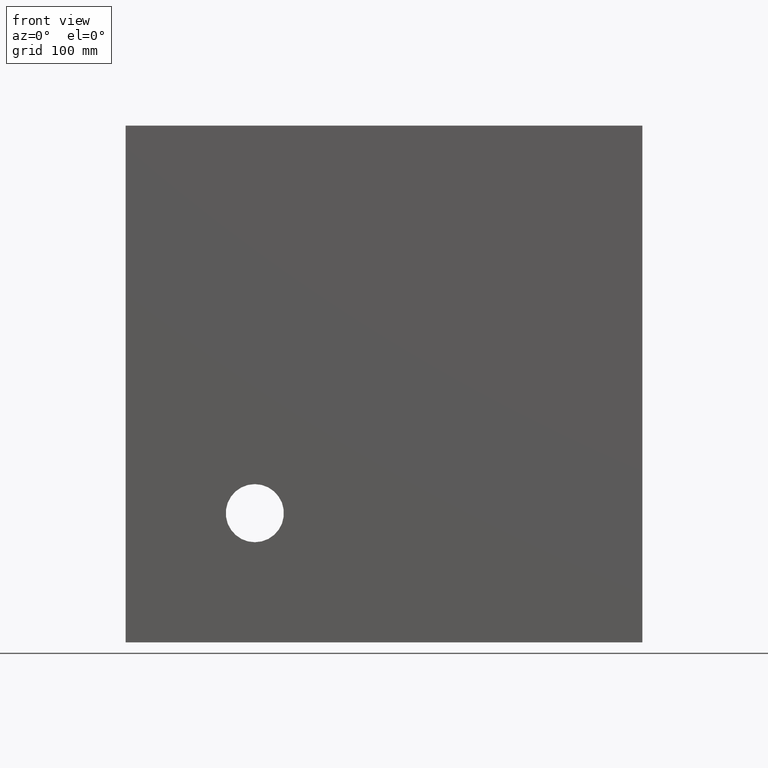
[diagram: clean part render]
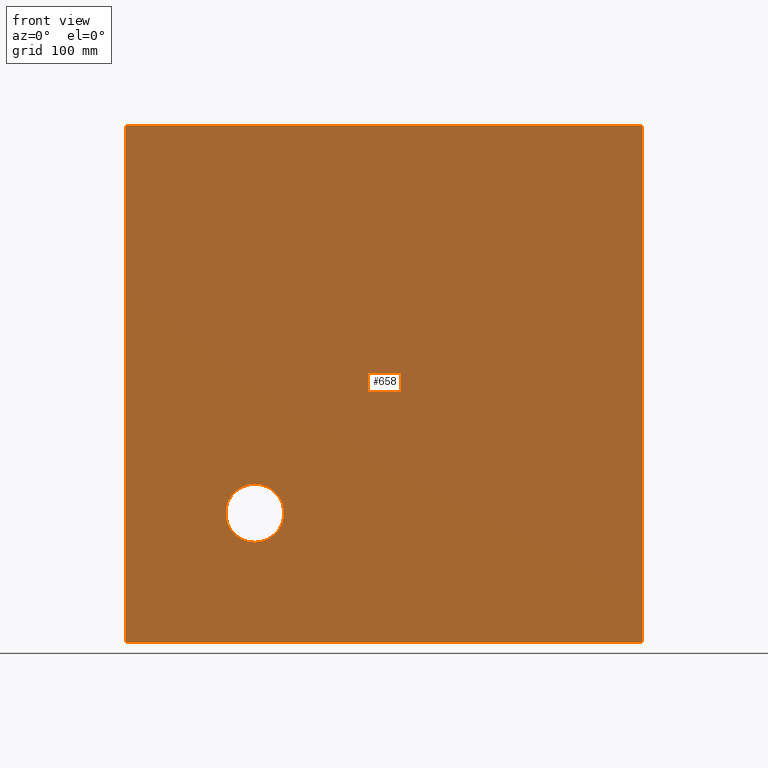
[diagram: same view with one face highlighted and labeled with its STEP entity id]
A machine part, front view. The second image highlights one B-rep face of the part: STEP entity #658.
In plain terms, the highlighted planar face has unit normal (0, 1, 0).
Its self-contained STEP definition (entity closure, byte-faithful):
#4 = EDGE_LOOP ( 'NONE', ( #969, #198, #120, #133 ) ) ;
#6 = LINE ( 'NONE', #288, #695 ) ;
#25 = CIRCLE ( 'NONE', #125, 44.99999999999995700 ) ;
#49 = EDGE_CURVE ( 'NONE', #841, #210, #847, .T. ) ;
#71 = AXIS2_PLACEMENT_3D ( 'NONE', #93, #768, #464 ) ;
#88 = VECTOR ( 'NONE', #670, 1000.000000000000000 ) ;
#93 = CARTESIAN_POINT ( 'NONE',  ( -200.0000000000000900, 0.0000000000000000000, -199.9999999999998900 ) ) ;
#96 = CARTESIAN_POINT ( 'NONE',  ( -400.0000000000000000, 0.0000000000000000000, 400.0000000000001100 ) ) ;
#107 = DIRECTION ( 'NONE',  ( 0.0000000000000000000, 1.000000000000000000, 0.0000000000000000000 ) ) ;
#120 = ORIENTED_EDGE ( 'NONE', *, *, #49, .F. ) ;
#125 = AXIS2_PLACEMENT_3D ( 'NONE', #904, #588, #738 ) ;
#127 = LINE ( 'NONE', #260, #605 ) ;
#131 = FACE_OUTER_BOUND ( 'NONE', #4, .T. ) ;
#133 = ORIENTED_EDGE ( 'NONE', *, *, #415, .F. ) ;
#164 = AXIS2_PLACEMENT_3D ( 'NONE', #935, #107, #938 ) ;
#192 = EDGE_CURVE ( 'NONE', #194, #531, #256, .T. ) ;
#194 = VERTEX_POINT ( 'NONE', #534 ) ;
#198 = ORIENTED_EDGE ( 'NONE', *, *, #698, .F. ) ;
#210 = VERTEX_POINT ( 'NONE', #310 ) ;
#222 = VERTEX_POINT ( 'NONE', #96 ) ;
#256 = CIRCLE ( 'NONE', #71, 44.99999999999995700 ) ;
#260 = CARTESIAN_POINT ( 'NONE',  ( -400.0000000000001100, 0.0000000000000000000, -399.9999999999998900 ) ) ;
#267 = VECTOR ( 'NONE', #323, 1000.000000000000000 ) ;
#288 = CARTESIAN_POINT ( 'NONE',  ( -400.0000000000000000, 0.0000000000000000000, 400.0000000000001100 ) ) ;
#310 = CARTESIAN_POINT ( 'NONE',  ( 399.9999999999998900, 0.0000000000000000000, -399.9999999999998900 ) ) ;
#323 = DIRECTION ( 'NONE',  ( -1.000000000000000000, -0.0000000000000000000, -0.0000000000000000000 ) ) ;
#338 = EDGE_CURVE ( 'NONE', #356, #222, #127, .T. ) ;
#356 = VERTEX_POINT ( 'NONE', #637 ) ;
#415 = EDGE_CURVE ( 'NONE', #222, #841, #6, .T. ) ;
#464 = DIRECTION ( 'NONE',  ( 0.0000000000000000000, 0.0000000000000000000, 1.000000000000000000 ) ) ;
#531 = VERTEX_POINT ( 'NONE', #835 ) ;
#534 = CARTESIAN_POINT ( 'NONE',  ( -200.0000000000000900, 0.0000000000000000000, -244.9999999999998600 ) ) ;
#588 = DIRECTION ( 'NONE',  ( 0.0000000000000000000, 1.000000000000000000, 0.0000000000000000000 ) ) ;
#595 = FACE_BOUND ( 'NONE', #720, .T. ) ;
#605 = VECTOR ( 'NONE', #758, 1000.000000000000000 ) ;
#630 = EDGE_CURVE ( 'NONE', #531, #194, #25, .T. ) ;
#637 = CARTESIAN_POINT ( 'NONE',  ( -400.0000000000001100, 0.0000000000000000000, -399.9999999999998900 ) ) ;
#653 = CARTESIAN_POINT ( 'NONE',  ( 400.0000000000000000, 0.0000000000000000000, 400.0000000000001100 ) ) ;
#658 = ADVANCED_FACE ( 'NONE', ( #595, #131 ), #794, .F. ) ;
#670 = DIRECTION ( 'NONE',  ( -1.387778780781445700E-016, -0.0000000000000000000, -1.000000000000000000 ) ) ;
#695 = VECTOR ( 'NONE', #763, 1000.000000000000000 ) ;
#698 = EDGE_CURVE ( 'NONE', #210, #356, #704, .T. ) ;
#704 = LINE ( 'NONE', #762, #267 ) ;
#720 = EDGE_LOOP ( 'NONE', ( #816, #944 ) ) ;
#737 = CARTESIAN_POINT ( 'NONE',  ( 399.9999999999998900, 0.0000000000000000000, -399.9999999999998900 ) ) ;
#738 = DIRECTION ( 'NONE',  ( 0.0000000000000000000, 0.0000000000000000000, 1.000000000000000000 ) ) ;
#758 = DIRECTION ( 'NONE',  ( 1.387778780781445700E-016, 0.0000000000000000000, 1.000000000000000000 ) ) ;
#762 = CARTESIAN_POINT ( 'NONE',  ( -400.0000000000001100, 0.0000000000000000000, -399.9999999999998900 ) ) ;
#763 = DIRECTION ( 'NONE',  ( 1.000000000000000000, 0.0000000000000000000, 0.0000000000000000000 ) ) ;
#768 = DIRECTION ( 'NONE',  ( 0.0000000000000000000, 1.000000000000000000, 0.0000000000000000000 ) ) ;
#794 = PLANE ( 'NONE',  #164 ) ;
#816 = ORIENTED_EDGE ( 'NONE', *, *, #630, .T. ) ;
#835 = CARTESIAN_POINT ( 'NONE',  ( -200.0000000000000900, 0.0000000000000000000, -154.9999999999999400 ) ) ;
#841 = VERTEX_POINT ( 'NONE', #653 ) ;
#847 = LINE ( 'NONE', #737, #88 ) ;
#904 = CARTESIAN_POINT ( 'NONE',  ( -200.0000000000000900, 0.0000000000000000000, -199.9999999999998900 ) ) ;
#935 = CARTESIAN_POINT ( 'NONE',  ( -400.0000000000000000, 0.0000000000000000000, 400.0000000000001100 ) ) ;
#938 = DIRECTION ( 'NONE',  ( 0.0000000000000000000, -0.0000000000000000000, 1.000000000000000000 ) ) ;
#944 = ORIENTED_EDGE ( 'NONE', *, *, #192, .T. ) ;
#969 = ORIENTED_EDGE ( 'NONE', *, *, #338, .F. ) ;